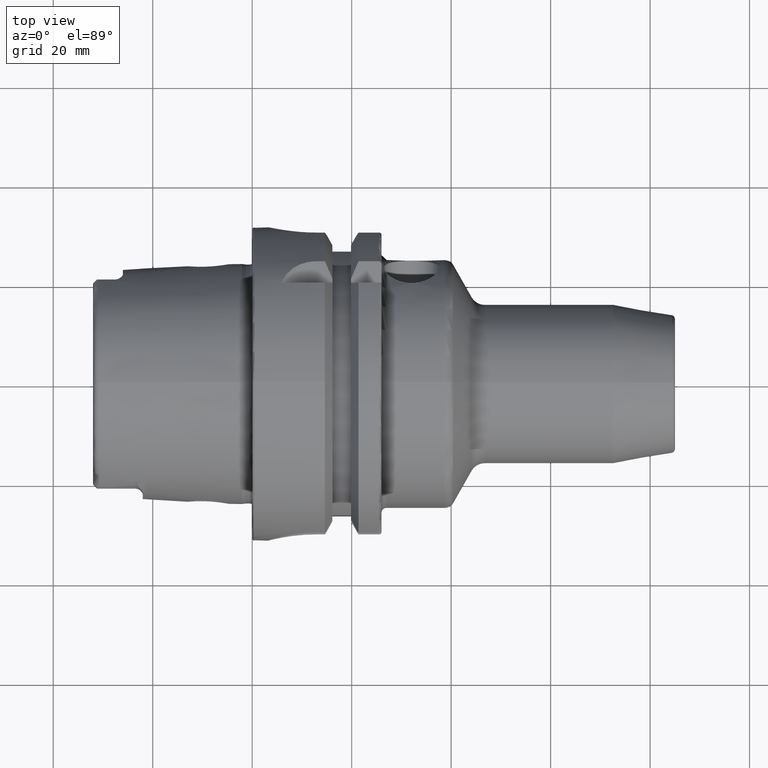
[diagram: clean part render]
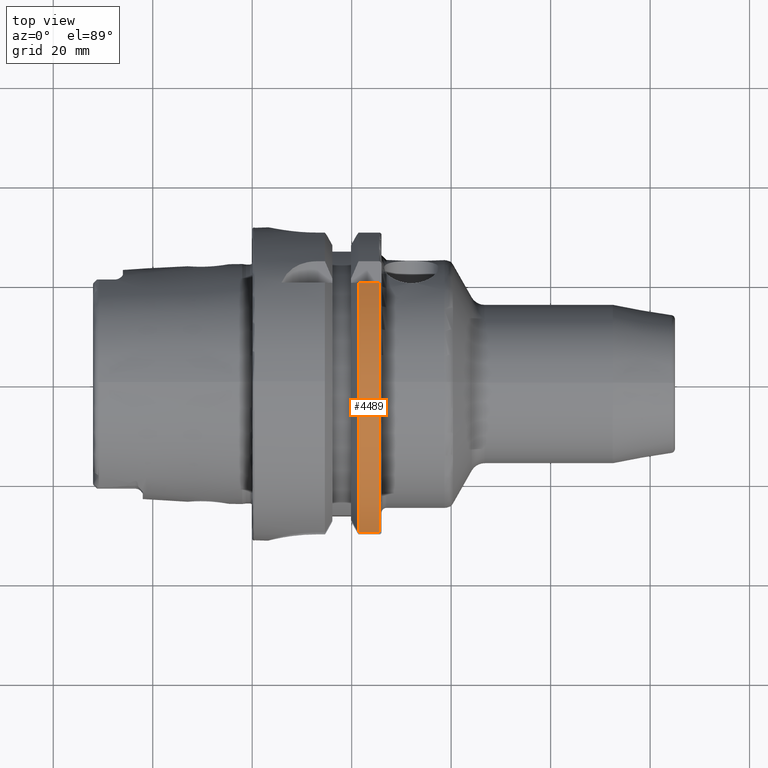
[diagram: same view with one face highlighted and labeled with its STEP entity id]
A machine part, top view. The second image highlights one B-rep face of the part: STEP entity #4489.
In plain terms, the highlighted cylindrical surface (partial cylindrical patch) has radius 31.5 mm, axis along (1, 0, 0).
Its self-contained STEP definition (entity closure, byte-faithful):
#1303=DIRECTION('',(1.E0,0.E0,0.E0));
#1304=VECTOR('',#1303,4.122500945915E0);
#1305=CARTESIAN_POINT('',(2.137749905409E1,-3.007314630073E1,9.373146300730E0));
#1306=LINE('',#1305,#1304);
#1307=DIRECTION('',(1.E0,0.E0,0.E0));
#1308=VECTOR('',#1307,4.122500945915E0);
#1309=CARTESIAN_POINT('',(2.137749905409E1,2.E1,2.433618704728E1));
#1310=LINE('',#1309,#1308);
#1445=CARTESIAN_POINT('',(2.55E1,-3.007314630073E1,9.373146300730E0));
#1787=CARTESIAN_POINT('',(2.55E1,0.E0,0.E0));
#1788=DIRECTION('',(-1.E0,0.E0,0.E0));
#1789=DIRECTION('',(0.E0,-9.547030571660E-1,2.975602000232E-1));
#1790=AXIS2_PLACEMENT_3D('',#1787,#1788,#1789);
#1806=CARTESIAN_POINT('',(2.55E1,2.E1,2.433618704728E1));
#1992=CARTESIAN_POINT('',(2.137749905409E1,-3.007314630073E1,9.373146300730E0));
#2015=CARTESIAN_POINT('',(2.137749905409E1,2.E1,2.433618704728E1));
#2017=CARTESIAN_POINT('',(2.137749905409E1,0.E0,0.E0));
#2018=DIRECTION('',(1.E0,0.E0,0.E0));
#2019=DIRECTION('',(0.E0,6.349206349206E-1,7.725773665802E-1));
#2020=AXIS2_PLACEMENT_3D('',#2017,#2018,#2019);
#2670=VERTEX_POINT('',#2015);
#2862=VERTEX_POINT('',#1992);
#2910=VERTEX_POINT('',#1806);
#2914=VERTEX_POINT('',#1445);
#4474=CARTESIAN_POINT('',(0.E0,0.E0,0.E0));
#4475=DIRECTION('',(1.E0,0.E0,0.E0));
#4476=DIRECTION('',(0.E0,0.E0,1.E0));
#4477=AXIS2_PLACEMENT_3D('',#4474,#4475,#4476);
#4478=CYLINDRICAL_SURFACE('',#4477,3.15E1);
#4480=ORIENTED_EDGE('',*,*,#4479,.F.);
#4482=ORIENTED_EDGE('',*,*,#4481,.F.);
#4484=ORIENTED_EDGE('',*,*,#4483,.F.);
#4486=ORIENTED_EDGE('',*,*,#4485,.T.);
#4487=EDGE_LOOP('',(#4480,#4482,#4484,#4486));
#4488=FACE_OUTER_BOUND('',#4487,.F.);
#4489=ADVANCED_FACE('',(#4488),#4478,.T.);
#1791=CIRCLE('',#1790,3.15E1);
#2021=CIRCLE('',#2020,3.15E1);
#4479=EDGE_CURVE('',#2914,#2910,#1791,.T.);
#4481=EDGE_CURVE('',#2862,#2914,#1306,.T.);
#4483=EDGE_CURVE('',#2670,#2862,#2021,.T.);
#4485=EDGE_CURVE('',#2670,#2910,#1310,.T.);